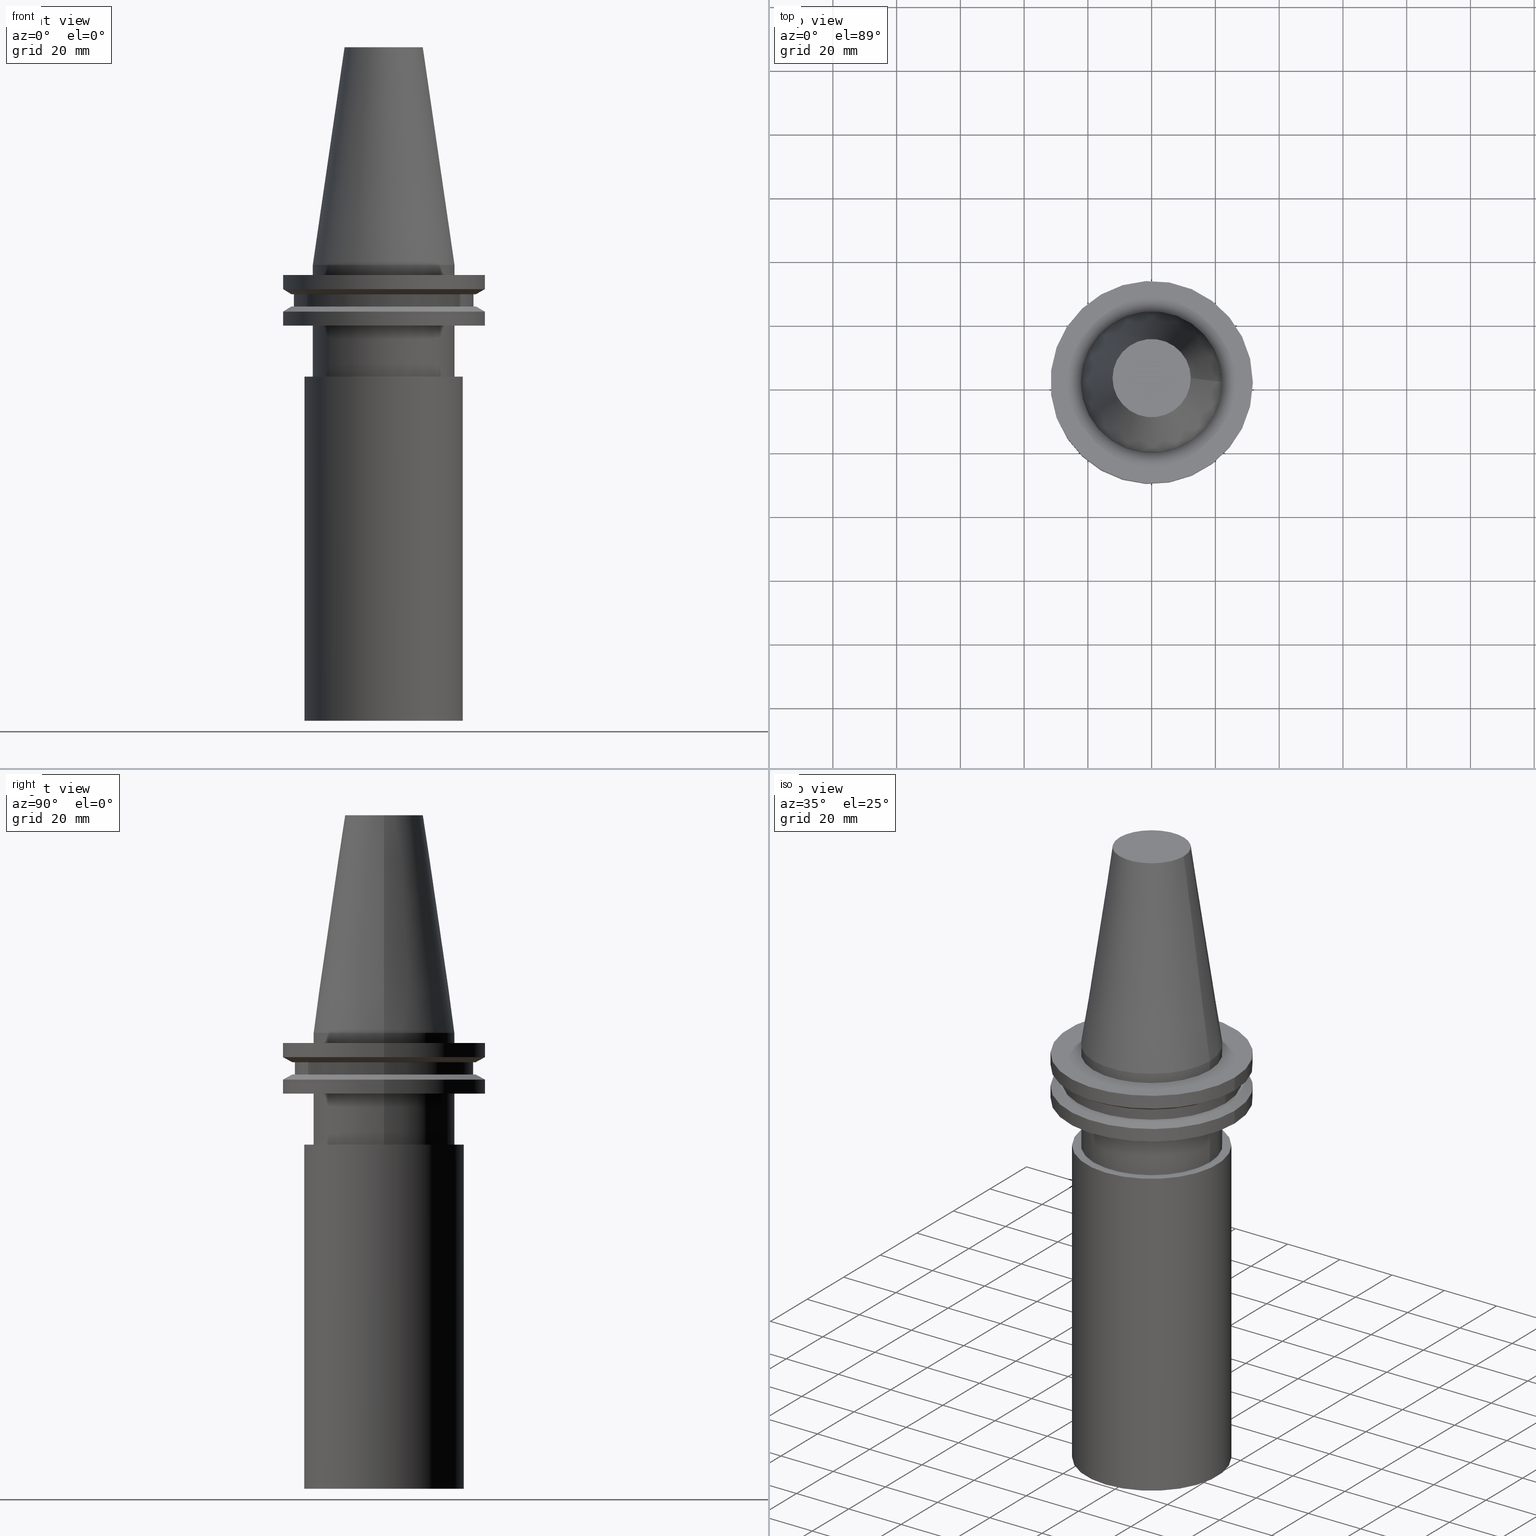
[diagram: canonical four-view strip — front | top / right | iso, engineering-drawing reading convention]
A machine part, canonical four-view strip (front | top / right | iso — engineering-drawing reading convention). The complete STEP part file that produces these views, byte-faithful:
ISO-10303-21;
HEADER;
FILE_DESCRIPTION (( 'STEP AP203' ),
    '1' );
FILE_NAME ('11.368.454.stp',
    '2022-03-09T15:13:31',
    ( '' ),
    ( '' ),
    'SwSTEP 2.0',
    'SolidWorks 2021',
    '' );
FILE_SCHEMA (( 'CONFIG_CONTROL_DESIGN' ));
ENDSEC;

DATA;
#1 = PERSON_AND_ORGANIZATION_ROLE ( 'creator' ) ;
#2 = FACE_OUTER_BOUND ( 'NONE', #49, .T. ) ;
#3 = APPLICATION_PROTOCOL_DEFINITION ( 'international standard', 'config_control_design', 1994, #190 ) ;
#4 = DIRECTION ( 'NONE',  ( 1.000000000000000000, 0.000000000000000000, 0.000000000000000000 ) ) ;
#5 = APPROVAL_STATUS ( 'not_yet_approved' ) ;
#6 = EDGE_CURVE ( 'NONE', #133, #133, #207, .T. ) ;
#7 = CYLINDRICAL_SURFACE ( 'NONE', #200, 24.99999999999999289 ) ;
#8 = LOCAL_TIME ( 9, 13, 31.00000000000000000, #9 ) ;
#9 = COORDINATED_UNIVERSAL_TIME_OFFSET ( 6, 0, .BEHIND. ) ;
#10 = APPROVAL ( #125, 'UNSPECIFIED' ) ;
#11 = DIRECTION ( 'NONE',  ( 1.000000000000000000, 0.000000000000000000, 0.000000000000000000 ) ) ;
#12 = CYLINDRICAL_SURFACE ( 'NONE', #223, 28.17999999999999972 ) ;
#13 = AXIS2_PLACEMENT_3D ( 'NONE', #245, #356, #59 ) ;
#14 = ORIENTED_EDGE ( 'NONE', *, *, #328, .F. ) ;
#15 = FACE_OUTER_BOUND ( 'NONE', #102, .T. ) ;
#16 = EDGE_LOOP ( 'NONE', ( #204 ) ) ;
#17 = ADVANCED_FACE ( 'NONE', ( #290 ), #144, .T. ) ;
#18 = DIRECTION ( 'NONE',  ( -0.000000000000000000, 9.075659465658940137E-17, -1.000000000000000000 ) ) ;
#19 = EDGE_LOOP ( 'NONE', ( #139 ) ) ;
#20 = CARTESIAN_POINT ( 'NONE',  ( 0.000000000000000000, 0.000000000000000000, -9.205000000000005400 ) ) ;
#21 = ORIENTED_EDGE ( 'NONE', *, *, #230, .F. ) ;
#22 = AXIS2_PLACEMENT_3D ( 'NONE', #265, #382, #179 ) ;
#23 = AXIS2_PLACEMENT_3D ( 'NONE', #42, #164, #11 ) ;
#24 = VERTEX_POINT ( 'NONE', #91 ) ;
#25 = EDGE_LOOP ( 'NONE', ( #228 ) ) ;
#26 = CARTESIAN_POINT ( 'NONE',  ( 28.17999999999999972, 0.000000000000000000, -13.05499999999999794 ) ) ;
#27 = CARTESIAN_POINT ( 'NONE',  ( 12.27178102086201150, 0.000000000000000000, 68.25000000000000000 ) ) ;
#28 = AXIS2_PLACEMENT_3D ( 'NONE', #88, #384, #240 ) ;
#29 = CIRCLE ( 'NONE', #380, 31.74999999999999289 ) ;
#30 = VERTEX_POINT ( 'NONE', #353 ) ;
#31 = ADVANCED_FACE ( 'NONE', ( #218, #325 ), #211, .T. ) ;
#32 = DIRECTION ( 'NONE',  ( 1.000000000000000000, 0.000000000000000000, 0.000000000000000000 ) ) ;
#33 = PERSON_AND_ORGANIZATION_ROLE ( 'design_owner' ) ;
#34 = DIRECTION ( 'NONE',  ( -0.000000000000000000, -0.000000000000000000, 1.000000000000000000 ) ) ;
#35 = CIRCLE ( 'NONE', #214, 31.75000000000000000 ) ;
#36 = SECURITY_CLASSIFICATION_LEVEL ( 'unclassified' ) ;
#37 = CARTESIAN_POINT ( 'NONE',  ( 0.000000000000000000, 9.797174393178824474E-15, -143.0000000000000000 ) ) ;
#38 = APPROVAL_STATUS ( 'not_yet_approved' ) ;
#39 = DIRECTION ( 'NONE',  ( -0.000000000000000000, 9.075659465658940137E-17, -1.000000000000000000 ) ) ;
#40 = AXIS2_PLACEMENT_3D ( 'NONE', #20, #103, #47 ) ;
#41 = CONICAL_SURFACE ( 'NONE', #40, 28.97919780457007732, 1.047197551196598297 ) ;
#42 = CARTESIAN_POINT ( 'NONE',  ( 0.000000000000000000, 0.000000000000000000, 68.25000000000000000 ) ) ;
#43 = DIRECTION ( 'NONE',  ( -1.000000000000000000, 0.000000000000000000, -0.000000000000000000 ) ) ;
#44 = ORIENTED_EDGE ( 'NONE', *, *, #6, .T. ) ;
#45 = FACE_BOUND ( 'NONE', #372, .T. ) ;
#46 = ORIENTED_EDGE ( 'NONE', *, *, #361, .T. ) ;
#47 = DIRECTION ( 'NONE',  ( 1.000000000000000000, 0.000000000000000000, 0.000000000000000000 ) ) ;
#48 = DIRECTION ( 'NONE',  ( -0.000000000000000000, -0.000000000000000000, 1.000000000000000000 ) ) ;
#49 = EDGE_LOOP ( 'NONE', ( #111 ) ) ;
#50 = EDGE_LOOP ( 'NONE', ( #176 ) ) ;
#51 = AXIS2_PLACEMENT_3D ( 'NONE', #378, #72, #43 ) ;
#52 = CARTESIAN_POINT ( 'NONE',  ( 0.000000000000000000, 0.000000000000000000, -9.205000000000005400 ) ) ;
#53 = VERTEX_POINT ( 'NONE', #27 ) ;
#54 = DIRECTION ( 'NONE',  ( 1.000000000000000000, 0.000000000000000000, 0.000000000000000000 ) ) ;
#55 = DIRECTION ( 'NONE',  ( 1.000000000000000000, 0.000000000000000000, 0.000000000000000000 ) ) ;
#56 = AXIS2_PLACEMENT_3D ( 'NONE', #152, #297, #120 ) ;
#57 = AXIS2_PLACEMENT_3D ( 'NONE', #197, #205, #227 ) ;
#58 = CARTESIAN_POINT ( 'NONE',  ( 0.000000000000000000, 25.00000000000000000, -35.04999999999999716 ) ) ;
#59 = DIRECTION ( 'NONE',  ( -1.000000000000000000, 0.000000000000000000, 0.000000000000000000 ) ) ;
#60 = DATE_AND_TIME ( #124, #232 ) ;
#61 = PLANE ( 'NONE',  #388 ) ;
#62 = ADVANCED_FACE ( 'NONE', ( #209 ), #61, .F. ) ;
#63 = DIRECTION ( 'NONE',  ( 0.000000000000000000, 0.000000000000000000, -1.000000000000000000 ) ) ;
#64 = DIRECTION ( 'NONE',  ( 1.000000000000000000, 0.000000000000000000, 0.000000000000000000 ) ) ;
#65 = FACE_OUTER_BOUND ( 'NONE', #71, .T. ) ;
#66 = COORDINATED_UNIVERSAL_TIME_OFFSET ( 6, 0, .BEHIND. ) ;
#67 = DIRECTION ( 'NONE',  ( -0.000000000000000000, -0.000000000000000000, 1.000000000000000000 ) ) ;
#68 = DATE_AND_TIME ( #220, #181 ) ;
#69 = AXIS2_PLACEMENT_3D ( 'NONE', #182, #305, #64 ) ;
#70 = DIRECTION ( 'NONE',  ( -0.000000000000000000, -0.000000000000000000, 1.000000000000000000 ) ) ;
#71 = EDGE_LOOP ( 'NONE', ( #136 ) ) ;
#72 = DIRECTION ( 'NONE',  ( 0.000000000000000000, 0.000000000000000000, -1.000000000000000000 ) ) ;
#73 = ORIENTED_EDGE ( 'NONE', *, *, #216, .T. ) ;
#74 = ORIENTED_EDGE ( 'NONE', *, *, #210, .F. ) ;
#75 = AXIS2_PLACEMENT_3D ( 'NONE', #310, #99, #222 ) ;
#76 = ADVANCED_FACE ( 'NONE', ( #333, #92 ), #360, .T. ) ;
#77 = DESIGN_CONTEXT ( 'detailed design', #190, 'design' ) ;
#78 = FACE_BOUND ( 'NONE', #109, .T. ) ;
#79 = DIRECTION ( 'NONE',  ( 1.000000000000000000, 0.000000000000000000, 0.000000000000000000 ) ) ;
#80 = EDGE_LOOP ( 'NONE', ( #74 ) ) ;
#81 = EDGE_CURVE ( 'NONE', #326, #326, #35, .T. ) ;
#82 = DIRECTION ( 'NONE',  ( -0.000000000000000000, -0.000000000000000000, 1.000000000000000000 ) ) ;
#83 = AXIS2_PLACEMENT_3D ( 'NONE', #229, #70, #289 ) ;
#84 = CARTESIAN_POINT ( 'NONE',  ( 28.17999999999999972, 0.000000000000000000, -9.204999999999991189 ) ) ;
#85 = PRODUCT_DEFINITION ( 'UNKNOWN', '', #167, #77 ) ;
#86 = DIRECTION ( 'NONE',  ( -0.000000000000000000, 9.075659465658940137E-17, -1.000000000000000000 ) ) ;
#87 = ADVANCED_FACE ( 'NONE', ( #390, #117 ), #160, .T. ) ;
#88 = CARTESIAN_POINT ( 'NONE',  ( 0.000000000000000000, 0.000000000000000000, -3.174999999999997158 ) ) ;
#89 = EDGE_CURVE ( 'NONE', #30, #30, #115, .T. ) ;
#90 = AXIS2_PLACEMENT_3D ( 'NONE', #203, #108, #173 ) ;
#91 = CARTESIAN_POINT ( 'NONE',  ( 0.000000000000000000, 25.00000000000000000, -143.0000000000000000 ) ) ;
#92 = FACE_OUTER_BOUND ( 'NONE', #25, .T. ) ;
#93 = CC_DESIGN_PERSON_AND_ORGANIZATION_ASSIGNMENT ( #369, #96, ( #221 ) ) ;
#94 = CALENDAR_DATE ( 2022, 9, 3 ) ;
#95 = CIRCLE ( 'NONE', #366, 28.17999999999999972 ) ;
#96 = PERSON_AND_ORGANIZATION_ROLE ( 'classification_officer' ) ;
#97 = CARTESIAN_POINT ( 'NONE',  ( 0.000000000000000000, 0.000000000000000000, -19.04999999999999716 ) ) ;
#98 = ADVANCED_BREP_SHAPE_REPRESENTATION ( '11.368.454', ( #121, #69 ), #249 ) ;
#99 = DIRECTION ( 'NONE',  ( -0.000000000000000000, -0.000000000000000000, 1.000000000000000000 ) ) ;
#100 = EDGE_CURVE ( 'NONE', #212, #212, #242, .T. ) ;
#101 = EDGE_CURVE ( 'NONE', #300, #300, #285, .T. ) ;
#102 = EDGE_LOOP ( 'NONE', ( #376 ) ) ;
#103 = DIRECTION ( 'NONE',  ( -0.000000000000000000, -0.000000000000000000, 1.000000000000000000 ) ) ;
#104 = EDGE_LOOP ( 'NONE', ( #288 ) ) ;
#105 = CC_DESIGN_DATE_AND_TIME_ASSIGNMENT ( #60, #184, ( #221 ) ) ;
#106 = DIRECTION ( 'NONE',  ( 1.000000000000000000, 0.000000000000000000, 0.000000000000000000 ) ) ;
#107 = EDGE_LOOP ( 'NONE', ( #44 ) ) ;
#108 = DIRECTION ( 'NONE',  ( -0.000000000000000000, -0.000000000000000000, 1.000000000000000000 ) ) ;
#109 = EDGE_LOOP ( 'NONE', ( #317 ) ) ;
#110 = FACE_OUTER_BOUND ( 'NONE', #258, .T. ) ;
#111 = ORIENTED_EDGE ( 'NONE', *, *, #235, .F. ) ;
#112 = VERTEX_POINT ( 'NONE', #151 ) ;
#113 = CARTESIAN_POINT ( 'NONE',  ( 0.000000000000000000, 0.000000000000000000, -3.174999999999997158 ) ) ;
#114 = FACE_BOUND ( 'NONE', #198, .T. ) ;
#115 = CIRCLE ( 'NONE', #187, 28.97919780457007732 ) ;
#116 = APPROVAL_PERSON_ORGANIZATION ( #250, #10, #191 ) ;
#117 = FACE_OUTER_BOUND ( 'NONE', #234, .T. ) ;
#118 = DIRECTION ( 'NONE',  ( 0.000000000000000000, -0.000000000000000000, 1.000000000000000000 ) ) ;
#119 = CARTESIAN_POINT ( 'NONE',  ( 31.75000000000000000, 0.000000000000000000, -3.174999999999997158 ) ) ;
#120 = DIRECTION ( 'NONE',  ( 0.000000000000000000, -1.000000000000000000, -9.075659465658938904E-17 ) ) ;
#121 = MANIFOLD_SOLID_BREP ( 'CKB', #322 ) ;
#122 = APPROVAL_PERSON_ORGANIZATION ( #276, #238, #311 ) ;
#123 = LOCAL_TIME ( 9, 13, 31.00000000000000000, #362 ) ;
#124 = CALENDAR_DATE ( 2022, 9, 3 ) ;
#125 = APPROVAL_STATUS ( 'not_yet_approved' ) ;
#126 = PERSON_AND_ORGANIZATION ( #344, #127 ) ;
#127 = ORGANIZATION ( 'UNSPECIFIED', 'UNSPECIFIED', '' ) ;
#128 = APPROVAL_ROLE ( '' ) ;
#129 = ADVANCED_FACE ( 'NONE', ( #301, #272 ), #357, .F. ) ;
#130 = CALENDAR_DATE ( 2022, 9, 3 ) ;
#131 = DIRECTION ( 'NONE',  ( 1.000000000000000000, 0.000000000000000000, 0.000000000000000000 ) ) ;
#132 = ORIENTED_EDGE ( 'NONE', *, *, #216, .F. ) ;
#133 = VERTEX_POINT ( 'NONE', #239 ) ;
#134 = AXIS2_PLACEMENT_3D ( 'NONE', #248, #82, #55 ) ;
#135 = PLANE ( 'NONE',  #51 ) ;
#136 = ORIENTED_EDGE ( 'NONE', *, *, #156, .F. ) ;
#137 = FACE_OUTER_BOUND ( 'NONE', #146, .T. ) ;
#138 = EDGE_LOOP ( 'NONE', ( #261 ) ) ;
#139 = ORIENTED_EDGE ( 'NONE', *, *, #100, .T. ) ;
#140 = AXIS2_PLACEMENT_3D ( 'NONE', #180, #86, #213 ) ;
#141 = CARTESIAN_POINT ( 'NONE',  ( 0.000000000000000000, 0.000000000000000000, -35.04999999999999716 ) ) ;
#142 = AXIS2_PLACEMENT_3D ( 'NONE', #141, #371, #282 ) ;
#143 = EDGE_CURVE ( 'NONE', #355, #355, #199, .T. ) ;
#144 = PLANE ( 'NONE',  #22 ) ;
#145 =( NAMED_UNIT ( * ) PLANE_ANGLE_UNIT ( ) SI_UNIT ( $, .RADIAN. ) );
#146 = EDGE_LOOP ( 'NONE', ( #321 ) ) ;
#147 = CC_DESIGN_DATE_AND_TIME_ASSIGNMENT ( #275, #155, ( #85 ) ) ;
#148 = DIRECTION ( 'NONE',  ( 0.000000000000000000, 0.000000000000000000, -1.000000000000000000 ) ) ;
#149 = AXIS2_PLACEMENT_3D ( 'NONE', #365, #368, #4 ) ;
#150 = ADVANCED_FACE ( 'NONE', ( #215, #331 ), #295, .F. ) ;
#151 = CARTESIAN_POINT ( 'NONE',  ( 31.74999999999999289, 0.000000000000000000, -19.04999999999999716 ) ) ;
#152 = CARTESIAN_POINT ( 'NONE',  ( 0.000000000000000000, 1.029594934207559202E-31, -35.04999999999999716 ) ) ;
#153 = APPLICATION_PROTOCOL_DEFINITION ( 'international standard', 'config_control_design', 1994, #270 ) ;
#154 = DIRECTION ( 'NONE',  ( 1.000000000000000000, 0.000000000000000000, 0.000000000000000000 ) ) ;
#155 = DATE_TIME_ROLE ( 'creation_date' ) ;
#156 = EDGE_CURVE ( 'NONE', #296, #296, #299, .T. ) ;
#157 = CC_DESIGN_APPROVAL ( #10, ( #221 ) ) ;
#158 = ADVANCED_FACE ( 'NONE', ( #114, #251 ), #254, .T. ) ;
#159 = CALENDAR_DATE ( 2022, 9, 3 ) ;
#160 = CONICAL_SURFACE ( 'NONE', #13, 31.75000000000000000, 1.047197551196597853 ) ;
#161 = APPROVAL_DATE_TIME ( #68, #238 ) ;
#162 = ADVANCED_FACE ( 'NONE', ( #307, #2 ), #7, .T. ) ;
#163 = CC_DESIGN_PERSON_AND_ORGANIZATION_ASSIGNMENT ( #252, #256, ( #167 ) ) ;
#164 = DIRECTION ( 'NONE',  ( -0.000000000000000000, -0.000000000000000000, 1.000000000000000000 ) ) ;
#165 = EDGE_LOOP ( 'NONE', ( #374 ) ) ;
#166 = AXIS2_PLACEMENT_3D ( 'NONE', #392, #118, #178 ) ;
#167 = PRODUCT_DEFINITION_FORMATION_WITH_SPECIFIED_SOURCE ( 'ANY', '', #219, .NOT_KNOWN. ) ;
#168 = FACE_OUTER_BOUND ( 'NONE', #349, .T. ) ;
#169 = ORIENTED_EDGE ( 'NONE', *, *, #89, .F. ) ;
#170 = CARTESIAN_POINT ( 'NONE',  ( 0.000000000000000000, 31.75000000000000000, -3.174999999999999378 ) ) ;
#171 = ORIENTED_EDGE ( 'NONE', *, *, #364, .T. ) ;
#172 = CC_DESIGN_PERSON_AND_ORGANIZATION_ASSIGNMENT ( #279, #281, ( #85 ) ) ;
#173 = DIRECTION ( 'NONE',  ( 1.000000000000000000, 0.000000000000000000, 0.000000000000000000 ) ) ;
#174 = ORIENTED_EDGE ( 'NONE', *, *, #143, .F. ) ;
#175 = APPROVAL_PERSON_ORGANIZATION ( #126, #304, #128 ) ;
#176 = ORIENTED_EDGE ( 'NONE', *, *, #224, .T. ) ;
#177 = CARTESIAN_POINT ( 'NONE',  ( 31.75000000000000000, 0.000000000000000000, -14.65472339340266572 ) ) ;
#178 = DIRECTION ( 'NONE',  ( 1.000000000000000000, 0.000000000000000000, 0.000000000000000000 ) ) ;
#179 = DIRECTION ( 'NONE',  ( 0.000000000000000000, 1.000000000000000000, 9.075659465658938904E-17 ) ) ;
#180 = CARTESIAN_POINT ( 'NONE',  ( 0.000000000000000000, -1.540743955509788682E-30, -35.04999999999999716 ) ) ;
#181 = LOCAL_TIME ( 9, 13, 31.00000000000000000, #363 ) ;
#182 = CARTESIAN_POINT ( 'NONE',  ( 0.000000000000000000, 0.000000000000000000, 0.000000000000000000 ) ) ;
#183 = CARTESIAN_POINT ( 'NONE',  ( 0.000000000000000000, 31.74999999999999289, -19.04999999999999716 ) ) ;
#184 = DATE_TIME_ROLE ( 'classification_date' ) ;
#185 = CARTESIAN_POINT ( 'NONE',  ( 0.000000000000000000, 12.27178102086201150, 68.25000000000000000 ) ) ;
#186 = DIRECTION ( 'NONE',  ( -1.000000000000000000, 0.000000000000000000, 0.000000000000000000 ) ) ;
#187 = AXIS2_PLACEMENT_3D ( 'NONE', #52, #268, #393 ) ;
#188 = SHAPE_DEFINITION_REPRESENTATION ( #383, #98 ) ;
#189 = FACE_OUTER_BOUND ( 'NONE', #196, .T. ) ;
#190 = APPLICATION_CONTEXT ( 'configuration controlled 3d designs of mechanical parts and assemblies' ) ;
#191 = APPROVAL_ROLE ( '' ) ;
#192 = DIRECTION ( 'NONE',  ( 1.000000000000000000, 0.000000000000000000, 0.000000000000000000 ) ) ;
#193 = AXIS2_PLACEMENT_3D ( 'NONE', #170, #375, #287 ) ;
#194 = ADVANCED_FACE ( 'NONE', ( #65, #189 ), #308, .T. ) ;
#195 = FACE_OUTER_BOUND ( 'NONE', #201, .T. ) ;
#196 = EDGE_LOOP ( 'NONE', ( #260 ) ) ;
#197 = CARTESIAN_POINT ( 'NONE',  ( 0.000000000000000000, 0.000000000000000000, -7.605276606597335842 ) ) ;
#198 = EDGE_LOOP ( 'NONE', ( #21 ) ) ;
#199 = CIRCLE ( 'NONE', #28, 22.22500000000000142 ) ;
#200 = AXIS2_PLACEMENT_3D ( 'NONE', #37, #39, #277 ) ;
#201 = EDGE_LOOP ( 'NONE', ( #46 ) ) ;
#202 = CC_DESIGN_PERSON_AND_ORGANIZATION_ASSIGNMENT ( #306, #1, ( #167 ) ) ;
#203 = CARTESIAN_POINT ( 'NONE',  ( 0.000000000000000000, 0.000000000000000000, -13.05499999999999794 ) ) ;
#204 = ORIENTED_EDGE ( 'NONE', *, *, #361, .F. ) ;
#205 = DIRECTION ( 'NONE',  ( -0.000000000000000000, -0.000000000000000000, 1.000000000000000000 ) ) ;
#206 = ORIENTED_EDGE ( 'NONE', *, *, #81, .F. ) ;
#207 = CIRCLE ( 'NONE', #339, 22.22500000000000142 ) ;
#208 = CARTESIAN_POINT ( 'NONE',  ( 22.22500000000000142, 0.000000000000000000, -3.174999999999997158 ) ) ;
#209 = FACE_OUTER_BOUND ( 'NONE', #286, .T. ) ;
#210 = EDGE_CURVE ( 'NONE', #112, #112, #29, .T. ) ;
#211 = CYLINDRICAL_SURFACE ( 'NONE', #134, 31.75000000000000000 ) ;
#212 = VERTEX_POINT ( 'NONE', #58 ) ;
#213 = DIRECTION ( 'NONE',  ( 0.000000000000000000, 1.000000000000000000, 0.000000000000000000 ) ) ;
#214 = AXIS2_PLACEMENT_3D ( 'NONE', #113, #247, #54 ) ;
#215 = FACE_OUTER_BOUND ( 'NONE', #80, .T. ) ;
#216 = EDGE_CURVE ( 'NONE', #271, #271, #323, .T. ) ;
#217 = COORDINATED_UNIVERSAL_TIME_OFFSET ( 6, 0, .BEHIND. ) ;
#218 = FACE_OUTER_BOUND ( 'NONE', #226, .T. ) ;
#219 = PRODUCT ( '11.368.454', '11.368.454', '', ( #335 ) ) ;
#220 = CALENDAR_DATE ( 2022, 9, 3 ) ;
#221 = SECURITY_CLASSIFICATION ( '', '', #36 ) ;
#222 = DIRECTION ( 'NONE',  ( 1.000000000000000000, 0.000000000000000000, 0.000000000000000000 ) ) ;
#223 = AXIS2_PLACEMENT_3D ( 'NONE', #345, #373, #106 ) ;
#224 = EDGE_CURVE ( 'NONE', #291, #291, #95, .T. ) ;
#225 = DIRECTION ( 'NONE',  ( 1.000000000000000000, 0.000000000000000000, 0.000000000000000000 ) ) ;
#226 = EDGE_LOOP ( 'NONE', ( #206 ) ) ;
#227 = DIRECTION ( 'NONE',  ( 1.000000000000000000, 0.000000000000000000, 0.000000000000000000 ) ) ;
#228 = ORIENTED_EDGE ( 'NONE', *, *, #100, .F. ) ;
#229 = CARTESIAN_POINT ( 'NONE',  ( 0.000000000000000000, 0.000000000000000000, 68.25000000000000000 ) ) ;
#230 = EDGE_CURVE ( 'NONE', #53, #53, #358, .T. ) ;
#231 = ORIENTED_EDGE ( 'NONE', *, *, #224, .F. ) ;
#232 = LOCAL_TIME ( 9, 13, 31.00000000000000000, #66 ) ;
#233 = CARTESIAN_POINT ( 'NONE',  ( 0.000000000000000000, 0.000000000000000000, 68.25000000000000000 ) ) ;
#234 = EDGE_LOOP ( 'NONE', ( #316 ) ) ;
#235 = EDGE_CURVE ( 'NONE', #24, #24, #243, .T. ) ;
#236 = FACE_OUTER_BOUND ( 'NONE', #165, .T. ) ;
#237 = ORIENTED_EDGE ( 'NONE', *, *, #235, .T. ) ;
#238 = APPROVAL ( #38, 'UNSPECIFIED' ) ;
#239 = CARTESIAN_POINT ( 'NONE',  ( 22.22500000000000142, 0.000000000000000000, -19.04999999999999716 ) ) ;
#240 = DIRECTION ( 'NONE',  ( 1.000000000000000000, 0.000000000000000000, 0.000000000000000000 ) ) ;
#241 = ADVANCED_FACE ( 'NONE', ( #45, #195 ), #135, .F. ) ;
#242 = CIRCLE ( 'NONE', #140, 25.00000000000000000 ) ;
#243 = CIRCLE ( 'NONE', #263, 24.99999999999998934 ) ;
#244 = DIRECTION ( 'NONE',  ( 1.000000000000000000, 0.000000000000000000, 0.000000000000000000 ) ) ;
#245 = CARTESIAN_POINT ( 'NONE',  ( 0.000000000000000000, 0.000000000000000000, -14.65472339340266572 ) ) ;
#246 = CC_DESIGN_PERSON_AND_ORGANIZATION_ASSIGNMENT ( #332, #33, ( #219 ) ) ;
#247 = DIRECTION ( 'NONE',  ( -0.000000000000000000, -0.000000000000000000, 1.000000000000000000 ) ) ;
#248 = CARTESIAN_POINT ( 'NONE',  ( 0.000000000000000000, 0.000000000000000000, 68.25000000000000000 ) ) ;
#249 =( GEOMETRIC_REPRESENTATION_CONTEXT ( 3 ) GLOBAL_UNCERTAINTY_ASSIGNED_CONTEXT ( ( #337 ) ) GLOBAL_UNIT_ASSIGNED_CONTEXT ( ( #324, #145, #391 ) ) REPRESENTATION_CONTEXT ( 'NONE', 'WORKASPACE' ) );
#250 = PERSON_AND_ORGANIZATION ( #344, #127 ) ;
#251 = FACE_OUTER_BOUND ( 'NONE', #320, .T. ) ;
#252 = PERSON_AND_ORGANIZATION ( #344, #127 ) ;
#253 = AXIS2_PLACEMENT_3D ( 'NONE', #183, #303, #154 ) ;
#254 = CONICAL_SURFACE ( 'NONE', #313, 22.22500000000000142, 0.1448138465474119174 ) ;
#255 = APPROVAL_DATE_TIME ( #395, #304 ) ;
#256 = PERSON_AND_ORGANIZATION_ROLE ( 'design_supplier' ) ;
#257 = FACE_OUTER_BOUND ( 'NONE', #50, .T. ) ;
#258 = EDGE_LOOP ( 'NONE', ( #171 ) ) ;
#259 = PLANE ( 'NONE',  #193 ) ;
#260 = ORIENTED_EDGE ( 'NONE', *, *, #210, .T. ) ;
#261 = ORIENTED_EDGE ( 'NONE', *, *, #328, .T. ) ;
#262 = CIRCLE ( 'NONE', #57, 31.75000000000000000 ) ;
#263 = AXIS2_PLACEMENT_3D ( 'NONE', #341, #18, #283 ) ;
#264 = CYLINDRICAL_SURFACE ( 'NONE', #280, 22.22500000000000142 ) ;
#265 = CARTESIAN_POINT ( 'NONE',  ( 0.000000000000000000, 25.00000000000000000, -143.0000000000000000 ) ) ;
#266 = CARTESIAN_POINT ( 'NONE',  ( 22.22499999999999787, 0.000000000000000000, -35.04999999999999716 ) ) ;
#267 = VERTEX_POINT ( 'NONE', #302 ) ;
#268 = DIRECTION ( 'NONE',  ( -0.000000000000000000, -0.000000000000000000, 1.000000000000000000 ) ) ;
#269 = DIRECTION ( 'NONE',  ( -1.000000000000000000, 0.000000000000000000, -0.000000000000000000 ) ) ;
#270 = APPLICATION_CONTEXT ( 'configuration controlled 3d designs of mechanical parts and assemblies' ) ;
#271 = VERTEX_POINT ( 'NONE', #84 ) ;
#272 = FACE_BOUND ( 'NONE', #284, .T. ) ;
#273 = VERTEX_POINT ( 'NONE', #294 ) ;
#274 = CARTESIAN_POINT ( 'NONE',  ( 0.000000000000000000, 0.000000000000000000, -14.65472339340266572 ) ) ;
#275 = DATE_AND_TIME ( #159, #8 ) ;
#276 = PERSON_AND_ORGANIZATION ( #344, #127 ) ;
#277 = DIRECTION ( 'NONE',  ( 0.000000000000000000, 1.000000000000000000, 0.000000000000000000 ) ) ;
#278 = ADVANCED_FACE ( 'NONE', ( #319, #78 ), #41, .T. ) ;
#279 = PERSON_AND_ORGANIZATION ( #344, #127 ) ;
#280 = AXIS2_PLACEMENT_3D ( 'NONE', #233, #315, #225 ) ;
#281 = PERSON_AND_ORGANIZATION_ROLE ( 'creator' ) ;
#282 = DIRECTION ( 'NONE',  ( 1.000000000000000000, 0.000000000000000000, 0.000000000000000000 ) ) ;
#283 = DIRECTION ( 'NONE',  ( 0.000000000000000000, 1.000000000000000000, 0.000000000000000000 ) ) ;
#284 = EDGE_LOOP ( 'NONE', ( #73 ) ) ;
#285 = CIRCLE ( 'NONE', #334, 22.22500000000000142 ) ;
#286 = EDGE_LOOP ( 'NONE', ( #293 ) ) ;
#287 = DIRECTION ( 'NONE',  ( -1.000000000000000000, 0.000000000000000000, -0.000000000000000000 ) ) ;
#288 = ORIENTED_EDGE ( 'NONE', *, *, #101, .F. ) ;
#289 = DIRECTION ( 'NONE',  ( 1.000000000000000000, 0.000000000000000000, 0.000000000000000000 ) ) ;
#290 = FACE_OUTER_BOUND ( 'NONE', #343, .T. ) ;
#291 = VERTEX_POINT ( 'NONE', #26 ) ;
#292 = ADVANCED_FACE ( 'NONE', ( #15, #110 ), #264, .T. ) ;
#293 = ORIENTED_EDGE ( 'NONE', *, *, #230, .T. ) ;
#294 = CARTESIAN_POINT ( 'NONE',  ( 28.97919780457008088, 0.000000000000000000, -13.05499999999999794 ) ) ;
#295 = PLANE ( 'NONE',  #253 ) ;
#296 = VERTEX_POINT ( 'NONE', #177 ) ;
#297 = DIRECTION ( 'NONE',  ( 0.000000000000000000, -9.075659465658938904E-17, 1.000000000000000000 ) ) ;
#298 = ADVANCED_FACE ( 'NONE', ( #168, #257 ), #12, .T. ) ;
#299 = CIRCLE ( 'NONE', #347, 31.75000000000000000 ) ;
#300 = VERTEX_POINT ( 'NONE', #386 ) ;
#301 = FACE_OUTER_BOUND ( 'NONE', #370, .T. ) ;
#302 = CARTESIAN_POINT ( 'NONE',  ( 31.75000000000000000, 0.000000000000000000, -7.605276606597335842 ) ) ;
#303 = DIRECTION ( 'NONE',  ( 0.000000000000000000, -0.000000000000000000, 1.000000000000000000 ) ) ;
#304 = APPROVAL ( #5, 'UNSPECIFIED' ) ;
#305 = DIRECTION ( 'NONE',  ( 0.000000000000000000, 0.000000000000000000, 1.000000000000000000 ) ) ;
#306 = PERSON_AND_ORGANIZATION ( #344, #127 ) ;
#307 = FACE_OUTER_BOUND ( 'NONE', #19, .T. ) ;
#308 = CYLINDRICAL_SURFACE ( 'NONE', #149, 31.75000000000000000 ) ;
#309 = DATE_AND_TIME ( #94, #123 ) ;
#310 = CARTESIAN_POINT ( 'NONE',  ( 0.000000000000000000, 0.000000000000000000, -9.204999999999991189 ) ) ;
#311 = APPROVAL_ROLE ( '' ) ;
#312 = DIRECTION ( 'NONE',  ( -0.000000000000000000, -0.000000000000000000, 1.000000000000000000 ) ) ;
#313 = AXIS2_PLACEMENT_3D ( 'NONE', #336, #63, #186 ) ;
#314 = ORIENTED_EDGE ( 'NONE', *, *, #364, .F. ) ;
#315 = DIRECTION ( 'NONE',  ( -0.000000000000000000, -0.000000000000000000, 1.000000000000000000 ) ) ;
#316 = ORIENTED_EDGE ( 'NONE', *, *, #156, .T. ) ;
#317 = ORIENTED_EDGE ( 'NONE', *, *, #89, .T. ) ;
#318 = CARTESIAN_POINT ( 'NONE',  ( 0.000000000000000000, 0.000000000000000000, -19.04999999999999716 ) ) ;
#319 = FACE_OUTER_BOUND ( 'NONE', #342, .T. ) ;
#320 = EDGE_LOOP ( 'NONE', ( #352 ) ) ;
#321 = ORIENTED_EDGE ( 'NONE', *, *, #81, .T. ) ;
#322 = CLOSED_SHELL ( 'NONE', ( #158, #62, #292, #150, #194, #87, #241, #298, #129, #278, #31, #350, #385, #76, #162, #17 ) ) ;
#323 = CIRCLE ( 'NONE', #75, 28.17999999999999972 ) ;
#324 =( LENGTH_UNIT ( ) NAMED_UNIT ( * ) SI_UNIT ( .MILLI., .METRE. ) );
#325 = FACE_OUTER_BOUND ( 'NONE', #138, .T. ) ;
#326 = VERTEX_POINT ( 'NONE', #119 ) ;
#327 = CARTESIAN_POINT ( 'NONE',  ( 0.000000000000000000, 0.000000000000000000, 0.000000000000000000 ) ) ;
#328 = EDGE_CURVE ( 'NONE', #267, #267, #262, .T. ) ;
#329 = VERTEX_POINT ( 'NONE', #266 ) ;
#330 = CIRCLE ( 'NONE', #142, 22.22499999999999787 ) ;
#331 = FACE_BOUND ( 'NONE', #107, .T. ) ;
#332 = PERSON_AND_ORGANIZATION ( #344, #127 ) ;
#333 = FACE_BOUND ( 'NONE', #346, .T. ) ;
#334 = AXIS2_PLACEMENT_3D ( 'NONE', #327, #34, #32 ) ;
#335 = MECHANICAL_CONTEXT ( 'NONE', #270, 'mechanical' ) ;
#336 = CARTESIAN_POINT ( 'NONE',  ( 0.000000000000000000, 0.000000000000000000, 0.000000000000000000 ) ) ;
#337 = UNCERTAINTY_MEASURE_WITH_UNIT (LENGTH_MEASURE( 1.000000000000000082E-05 ), #324, 'distance_accuracy_value', 'NONE');
#338 = CARTESIAN_POINT ( 'NONE',  ( 0.000000000000000000, 0.000000000000000000, -13.05499999999999794 ) ) ;
#339 = AXIS2_PLACEMENT_3D ( 'NONE', #318, #48, #79 ) ;
#340 = CC_DESIGN_APPROVAL ( #238, ( #85 ) ) ;
#341 = CARTESIAN_POINT ( 'NONE',  ( 0.000000000000000000, 9.797174393178824474E-15, -143.0000000000000000 ) ) ;
#342 = EDGE_LOOP ( 'NONE', ( #14 ) ) ;
#343 = EDGE_LOOP ( 'NONE', ( #237 ) ) ;
#344 = PERSON ( 'UNSPECIFIED', 'UNSPECIFIED', 'UNSPECIFIED', ('UNSPECIFIED'), ('UNSPECIFIED'), ('UNSPECIFIED') ) ;
#345 = CARTESIAN_POINT ( 'NONE',  ( 0.000000000000000000, 0.000000000000000000, 68.25000000000000000 ) ) ;
#346 = EDGE_LOOP ( 'NONE', ( #314 ) ) ;
#347 = AXIS2_PLACEMENT_3D ( 'NONE', #274, #387, #244 ) ;
#348 = FACE_BOUND ( 'NONE', #379, .T. ) ;
#349 = EDGE_LOOP ( 'NONE', ( #132 ) ) ;
#350 = ADVANCED_FACE ( 'NONE', ( #348, #137 ), #259, .F. ) ;
#351 = CYLINDRICAL_SURFACE ( 'NONE', #23, 22.22500000000000142 ) ;
#352 = ORIENTED_EDGE ( 'NONE', *, *, #101, .T. ) ;
#353 = CARTESIAN_POINT ( 'NONE',  ( 28.97919780457007732, 0.000000000000000000, -9.205000000000005400 ) ) ;
#354 = CIRCLE ( 'NONE', #90, 28.97919780457008088 ) ;
#355 = VERTEX_POINT ( 'NONE', #208 ) ;
#356 = DIRECTION ( 'NONE',  ( 0.000000000000000000, 0.000000000000000000, -1.000000000000000000 ) ) ;
#357 = PLANE ( 'NONE',  #166 ) ;
#358 = CIRCLE ( 'NONE', #83, 12.27178102086201150 ) ;
#359 = CC_DESIGN_SECURITY_CLASSIFICATION ( #221, ( #167 ) ) ;
#360 = PLANE ( 'NONE',  #56 ) ;
#361 = EDGE_CURVE ( 'NONE', #273, #273, #354, .T. ) ;
#362 = COORDINATED_UNIVERSAL_TIME_OFFSET ( 6, 0, .BEHIND. ) ;
#363 = COORDINATED_UNIVERSAL_TIME_OFFSET ( 6, 0, .BEHIND. ) ;
#364 = EDGE_CURVE ( 'NONE', #329, #329, #330, .T. ) ;
#365 = CARTESIAN_POINT ( 'NONE',  ( 0.000000000000000000, 0.000000000000000000, 68.25000000000000000 ) ) ;
#366 = AXIS2_PLACEMENT_3D ( 'NONE', #338, #312, #131 ) ;
#367 = APPROVAL_DATE_TIME ( #309, #10 ) ;
#368 = DIRECTION ( 'NONE',  ( -0.000000000000000000, -0.000000000000000000, 1.000000000000000000 ) ) ;
#369 = PERSON_AND_ORGANIZATION ( #344, #127 ) ;
#370 = EDGE_LOOP ( 'NONE', ( #169 ) ) ;
#371 = DIRECTION ( 'NONE',  ( -0.000000000000000000, -0.000000000000000000, 1.000000000000000000 ) ) ;
#372 = EDGE_LOOP ( 'NONE', ( #231 ) ) ;
#373 = DIRECTION ( 'NONE',  ( -0.000000000000000000, -0.000000000000000000, 1.000000000000000000 ) ) ;
#374 = ORIENTED_EDGE ( 'NONE', *, *, #143, .T. ) ;
#375 = DIRECTION ( 'NONE',  ( 0.000000000000000000, 0.000000000000000000, -1.000000000000000000 ) ) ;
#376 = ORIENTED_EDGE ( 'NONE', *, *, #6, .F. ) ;
#377 = PRODUCT_RELATED_PRODUCT_CATEGORY ( 'detail', '', ( #219 ) ) ;
#378 = CARTESIAN_POINT ( 'NONE',  ( 0.000000000000000000, 28.17999999999999972, -13.05499999999999794 ) ) ;
#379 = EDGE_LOOP ( 'NONE', ( #174 ) ) ;
#380 = AXIS2_PLACEMENT_3D ( 'NONE', #97, #67, #192 ) ;
#381 = FACE_OUTER_BOUND ( 'NONE', #104, .T. ) ;
#382 = DIRECTION ( 'NONE',  ( -0.000000000000000000, 9.075659465658938904E-17, -1.000000000000000000 ) ) ;
#383 = PRODUCT_DEFINITION_SHAPE ( 'NONE', 'NONE',  #85 ) ;
#384 = DIRECTION ( 'NONE',  ( -0.000000000000000000, -0.000000000000000000, 1.000000000000000000 ) ) ;
#385 = ADVANCED_FACE ( 'NONE', ( #381, #236 ), #351, .T. ) ;
#386 = CARTESIAN_POINT ( 'NONE',  ( 22.22500000000000142, 0.000000000000000000, 0.000000000000000000 ) ) ;
#387 = DIRECTION ( 'NONE',  ( -0.000000000000000000, -0.000000000000000000, 1.000000000000000000 ) ) ;
#388 = AXIS2_PLACEMENT_3D ( 'NONE', #185, #148, #269 ) ;
#389 = CC_DESIGN_APPROVAL ( #304, ( #167 ) ) ;
#390 = FACE_BOUND ( 'NONE', #16, .T. ) ;
#391 =( NAMED_UNIT ( * ) SI_UNIT ( $, .STERADIAN. ) SOLID_ANGLE_UNIT ( ) );
#392 = CARTESIAN_POINT ( 'NONE',  ( 0.000000000000000000, 28.97919780457007732, -9.204999999999996518 ) ) ;
#393 = DIRECTION ( 'NONE',  ( 1.000000000000000000, 0.000000000000000000, 0.000000000000000000 ) ) ;
#394 = LOCAL_TIME ( 9, 13, 31.00000000000000000, #217 ) ;
#395 = DATE_AND_TIME ( #130, #394 ) ;
ENDSEC;
END-ISO-10303-21;
